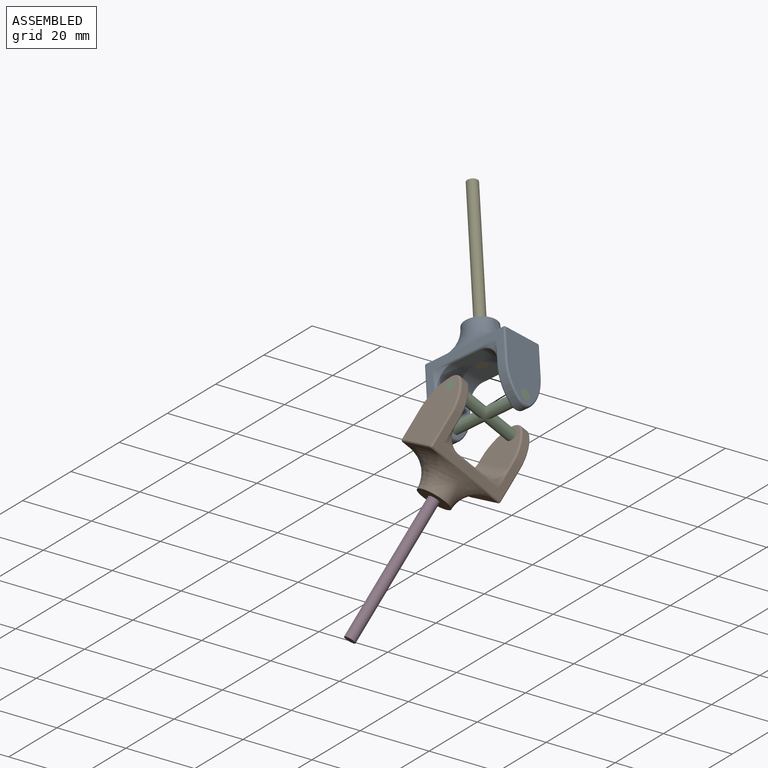
[diagram: assembled view]
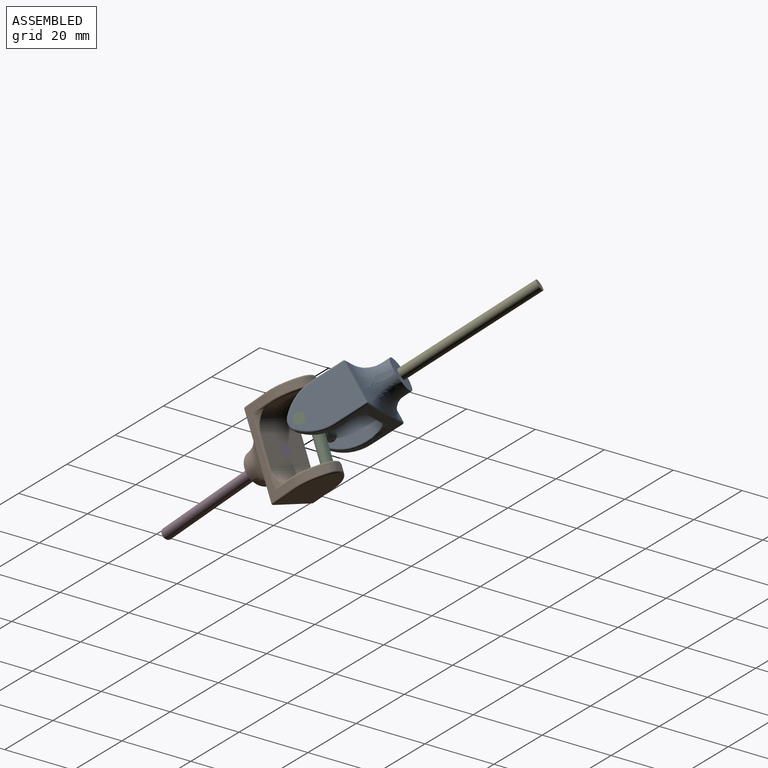
[diagram: assembled view, second angle]
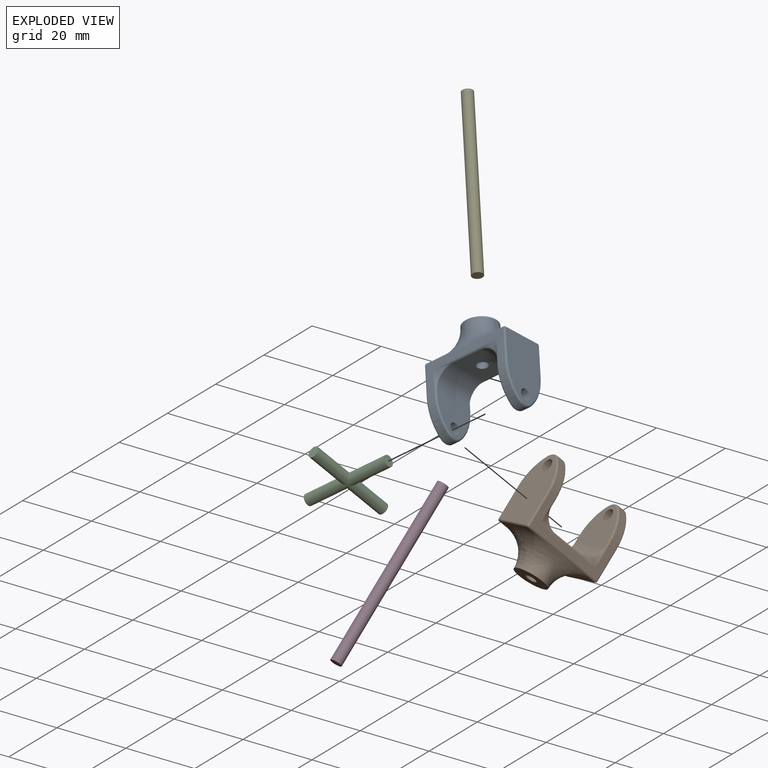
[diagram: exploded view]
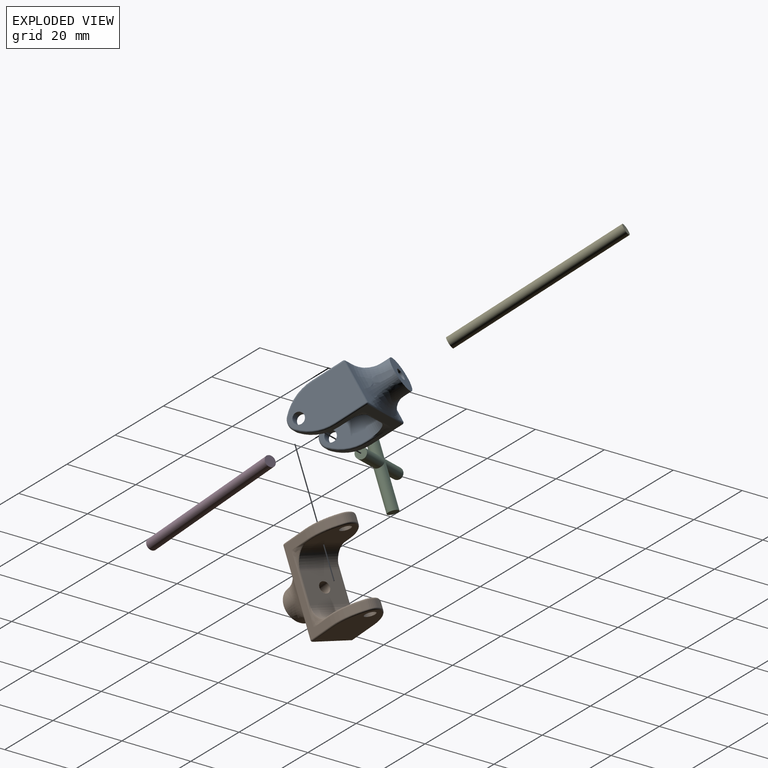
[diagram: exploded view, second angle]
ASSEMBLY  parts=5 mates=4
PART A: 71 faces, bbox 22.7x41.2x38.8 mm
  f0: bspline ~5.52x5.52mm, area 8.9mm2, adj f28,f30,f68,f69
  f1: bspline ~5.52x5.52mm, area 8.9mm2, adj f35,f37,f69,f70
  f2: bspline ~5.52x5.52mm, area 8.9mm2, adj f26,f28,f65,f66
  f3: bspline ~5.52x5.52mm, area 8.9mm2, adj f33,f35,f66,f67
  f4: cylinder r=1.59mm len=10.8mm, axis (0,0,1), area 107.7mm2, adj f11,f64
  f5: cylinder r=4.76mm len=8.4mm, axis (0,0,1), area 0mm2, adj f60,f64
  f6: cylinder r=4.76mm len=8.4mm, axis (0,0,1), area 0mm2, adj f59,f64
  f7: plane 3.68x1.27mm, normal (0,0,-1), area 1.9mm2, adj f44,f51,f61
  f8: plane 3.68x1.27mm, normal (0,0,-1), area 1.9mm2, adj f44,f45,f57
  f9: plane 3.68x1.27mm, normal (0,0,-1), area 1.9mm2, adj f45,f52,f58
  f10: plane 3.68x1.27mm, normal (0,0,-1), area 1.9mm2, adj f51,f52,f62
  f11: plane 11.68x8.89mm, normal (0,0,1), area 96mm2, adj f4,f28,f35,f66,f69
  f12: plane 24.38x9.02mm, normal (-1,0,0), area 82.3mm2, adj f16,f21,f33,f35,f37,f39,f43,f44
  f13: plane 18.78x11.68mm, normal (0,-1,0), area 182.6mm2, adj f18,f38,f39,f40,f42,f45,f46
  f14: plane 24.38x9.02mm, normal (1,0,0), area 82.3mm2, adj f17,f22,f26,f28,f30,f46,f52,f55
  f15: plane 18.78x11.68mm, normal (0,1,0), area 182.6mm2, adj f23,f43,f47,f50,f51,f53,f55
  f16: cylinder r=12.7mm len=9.47mm, axis (0,-1,0), area 23.1mm2, adj f12,f19,f31,f38
  f17: cylinder r=12.7mm len=9.47mm, axis (0,-1,0), area 23.1mm2, adj f14,f19,f27,f42
  f18: cylinder r=1.59mm len=3.18mm, axis (0,-1,0), area 31.7mm2, adj f13,f20
  f19: cylinder r=3.17mm len=4.23mm, axis (0,-1,0), area 10mm2, adj f16,f17,f29,f40
  f20: plane 11.68x11.04mm, normal (0,1,0), area 92.1mm2, adj f18,f26,f27,f29,f31,f33,f66
  f21: cylinder r=12.7mm len=9.47mm, axis (0,1,0), area 23.1mm2, adj f12,f24,f36,f47
  f22: cylinder r=12.7mm len=9.47mm, axis (0,1,0), area 23.1mm2, adj f14,f24,f32,f53
  f23: cylinder r=1.59mm len=3.18mm, axis (0,1,0), area 31.7mm2, adj f15,f25
  f24: cylinder r=3.17mm len=4.23mm, axis (0,1,0), area 10mm2, adj f21,f22,f34,f50
  f25: plane 11.68x11.04mm, normal (0,-1,0), area 92.1mm2, adj f23,f30,f32,f34,f36,f37,f69
  f26: cylinder r=0.51mm len=6.86mm, axis (0,0,-1), area 2.6mm2, adj f2,f14,f20,f27,f65
  f27: torus R=12.19mm, axis (0,-1,0), area 8.4mm2, adj f17,f20,f26,f29
  f28: cylinder r=0.51mm len=20.07mm, axis (0,-1,0), area 10.3mm2, adj f0,f2,f11,f14,f65,f68
  f29: torus R=2.67mm, axis (0,-1,0), area 3.5mm2, adj f19,f20,f27,f31
  f30: cylinder r=0.51mm len=6.86mm, axis (0,0,-1), area 2.6mm2, adj f0,f14,f25,f32,f68
  f31: torus R=12.19mm, axis (0,-1,0), area 8.4mm2, adj f16,f20,f29,f33
  f32: torus R=12.19mm, axis (0,1,0), area 8.4mm2, adj f22,f25,f30,f34
  f33: cylinder r=0.51mm len=6.86mm, axis (0,0,1), area 2.6mm2, adj f3,f12,f20,f31,f67
  f34: torus R=2.67mm, axis (0,1,0), area 3.5mm2, adj f24,f25,f32,f36
  f35: cylinder r=0.51mm len=20.07mm, axis (0,1,0), area 10.3mm2, adj f1,f3,f11,f12,f67,f70
  f36: torus R=12.19mm, axis (0,1,0), area 8.4mm2, adj f21,f25,f34,f37
  f37: cylinder r=0.51mm len=6.86mm, axis (0,0,1), area 2.6mm2, adj f1,f12,f25,f36,f70
  f38: torus R=12.19mm, axis (0,1,0), area 8.4mm2, adj f13,f16,f39,f40
  f39: cylinder r=0.51mm len=9.02mm, axis (0,0,-1), area 7.2mm2, adj f12,f13,f38,f41
  f40: torus R=2.67mm, axis (0,1,0), area 3.5mm2, adj f13,f19,f38,f42
  f41: sphere r=0.51mm, area 0.4mm2, adj f39,f44,f45
  f42: torus R=12.19mm, axis (0,1,0), area 8.4mm2, adj f13,f17,f40,f46
  f43: cylinder r=0.51mm len=9.02mm, axis (0,0,1), area 7.2mm2, adj f12,f15,f47,f48
  f44: cylinder r=0.51mm len=24.38mm, axis (0,-1,0), area 12.4mm2, adj f7,f8,f12,f41,f48,f59
  f45: cylinder r=0.51mm len=11.68mm, axis (1,0,0), area 9.3mm2, adj f8,f9,f13,f41,f49,f56
  f46: cylinder r=0.51mm len=9.02mm, axis (0,0,1), area 7.2mm2, adj f13,f14,f42,f49
  f47: torus R=12.19mm, axis (0,1,0), area 8.4mm2, adj f15,f21,f43,f50
  f48: sphere r=0.51mm, area 0.6mm2, adj f43,f44,f51
  f49: sphere r=0.51mm, area 0.4mm2, adj f45,f46,f52
  f50: torus R=2.67mm, axis (0,1,0), area 3.5mm2, adj f15,f24,f47,f53
  f51: cylinder r=0.51mm len=11.68mm, axis (-1,0,0), area 9.3mm2, adj f7,f10,f15,f48,f54,f63
  f52: cylinder r=0.51mm len=24.38mm, axis (0,1,0), area 12.4mm2, adj f9,f10,f14,f49,f54,f60
  f53: torus R=12.19mm, axis (0,1,0), area 8.4mm2, adj f15,f22,f50,f55
  f54: sphere r=0.51mm, area 0.3mm2, adj f51,f52,f55
  f55: cylinder r=0.51mm len=9.02mm, axis (0,0,-1), area 7.2mm2, adj f14,f15,f53,f54
  f56: bspline ~7.9x7.64mm, area 31.2mm2, adj f45,f57,f58,f64
  f57: torus R=12.38mm, axis (0,0,1), area 28.5mm2, adj f8,f56,f59,f64
  f58: torus R=12.38mm, axis (0,0,1), area 28.5mm2, adj f9,f56,f60,f64
  f59: bspline ~22.25x7.83mm, area 97.8mm2, adj f6,f44,f57,f61
  f60: bspline ~22.25x7.83mm, area 97.8mm2, adj f5,f52,f58,f62
  f61: torus R=12.38mm, axis (0,0,1), area 28.5mm2, adj f7,f59,f63,f64
  f62: torus R=12.38mm, axis (0,0,1), area 28.5mm2, adj f10,f60,f63,f64
  f63: bspline ~7.9x7.64mm, area 31.2mm2, adj f51,f61,f62,f64
  f64: plane 15.21x15.21mm, normal (0,0,-1), area 63.4mm2, adj f4,f5,f6,f56,f57,f58,f61,f62
  f65: bspline ~1.27x1.27mm, area 0.2mm2, adj f2,f26,f28
  f66: cylinder r=5.08mm len=11.68mm, axis (1,0,0), area 93.2mm2, adj f2,f3,f11,f20
  f67: bspline ~1.27x1.27mm, area 0.2mm2, adj f3,f33,f35
  f68: bspline ~1.27x1.27mm, area 0.2mm2, adj f0,f28,f30
  f69: cylinder r=5.08mm len=11.68mm, axis (1,0,0), area 93.2mm2, adj f0,f1,f11,f25
  f70: bspline ~1.27x1.27mm, area 0.2mm2, adj f1,f35,f37
PART B: same geometry as A
PART C: 8 faces, bbox 3.2x25.4x25.4 mm
  f0: cylinder r=1.59mm len=12.7mm, axis (0,0,-1), area 116.6mm2, adj f1,f3,f6
  f1: plane 3.18x3.18mm, normal (0,0,1), area 7.9mm2, adj f0
  f2: plane 3.18x3.18mm, normal (0,1,0), area 7.9mm2, adj f3
  f3: cylinder r=1.59mm len=12.7mm, axis (0,1,0), area 116.6mm2, adj f0,f2,f5
  f4: plane 3.18x3.18mm, normal (0,0,-1), area 7.9mm2, adj f5
  f5: cylinder r=1.59mm len=12.7mm, axis (0,0,-1), area 116.6mm2, adj f3,f4,f6
  f6: cylinder r=1.59mm len=12.7mm, axis (0,1,0), area 116.6mm2, adj f0,f5,f7
  f7: plane 3.18x3.18mm, normal (0,-1,0), area 7.9mm2, adj f6
PART D: 3 faces, bbox 3.2x3.2x50.8 mm
  f0: cylinder r=1.59mm len=50.8mm, axis (0,0,-1), area 506.7mm2, adj f1,f2
  f1: plane 3.18x3.18mm, normal (0,0,1), area 7.9mm2, adj f0
  f2: plane 3.18x3.18mm, normal (0,0,-1), area 7.9mm2, adj f0
PART E: same geometry as D
PLACE A rot(axis=(0.6,-0.65,0.47),175.9deg) t=(10.18,4.48,14.12)mm
PLACE B rot(axis=(-0.9,-0.08,-0.43),54.1deg) t=(17.16,-18.64,-6.29)mm
PLACE C rot(axis=(-0.45,0.65,-0.62),72.8deg) t=(8.37,-8.23,-2.4)mm
PLACE D rot(axis=(-0.04,0.42,0.91),157.3deg) t=(12.77,-53.98,-37.91)mm
PLACE E rot(axis=(-0.3,0.35,0.88),175.9deg) t=(11.81,2.42,12.33)mm
MATE fastened B.f4 <-> D.f0  axis (0.09,0.74,0.66) through (17.45,-16.28,-4.18)mm
MATE fastened A.f4 <-> E.f0  axis (0.51,-0.65,-0.56) through (11.81,2.42,12.33)mm
MATE revolute C.f3 <-> B.f18  axis (0.38,0.59,-0.71) through (13.83,-13.79,13.78)mm
MATE revolute A.f18 <-> C.f0  axis (-0.81,-0.15,-0.56) through (8.37,-8.23,-2.4)mm
